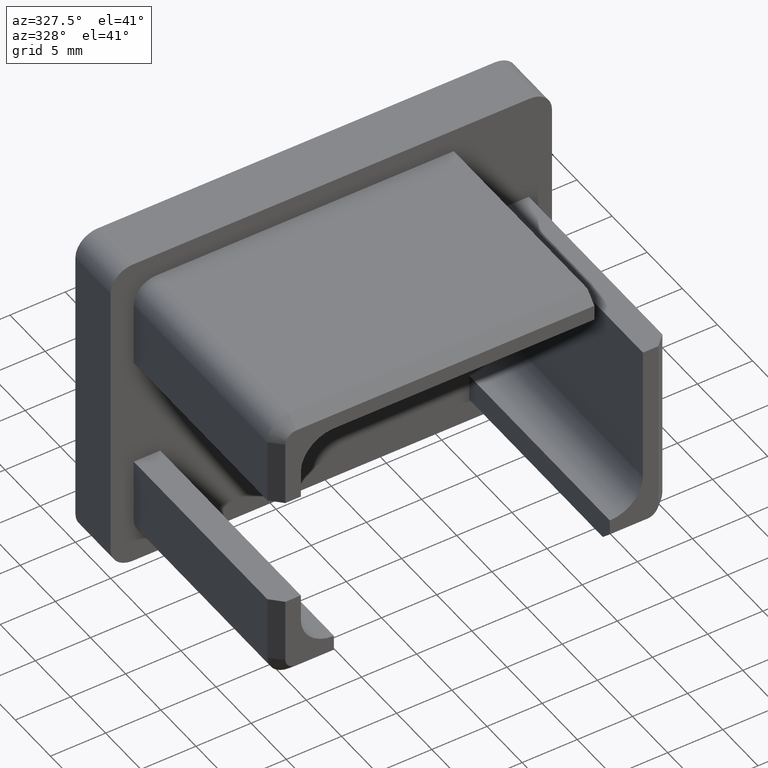
[diagram: clean part render]
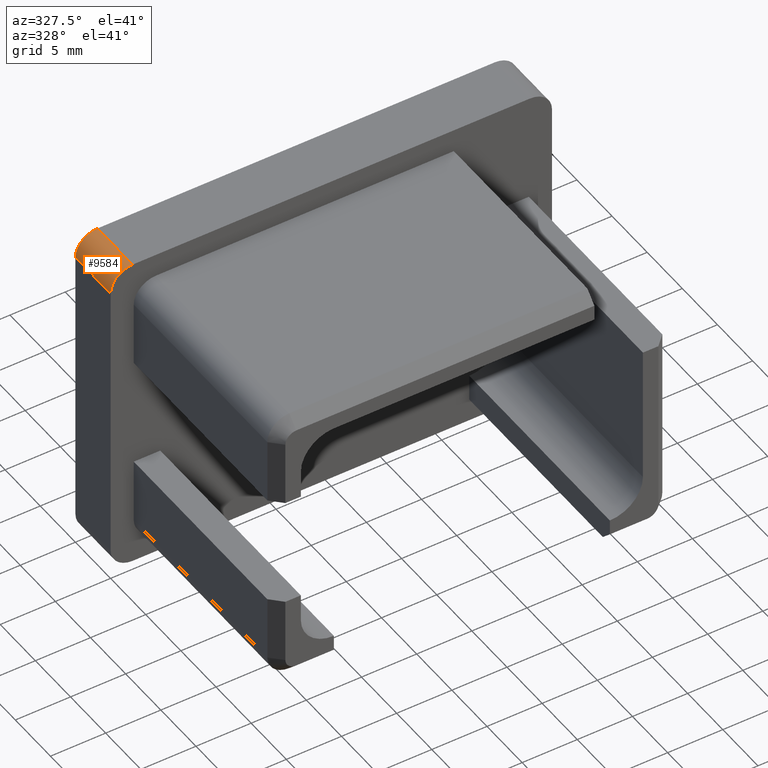
[diagram: same view with one face highlighted and labeled with its STEP entity id]
A machine part, auxiliary view. The second image highlights one B-rep face of the part: STEP entity #9584.
In plain terms, the highlighted cylindrical surface (edge-blend (fillet) strip) has radius 2 mm, axis along (0, -1, 0).
Its self-contained STEP definition (entity closure, byte-faithful):
#16 = DIRECTION ( 'NONE',  ( -0.0000000000000000000, 1.000000000000000000, -0.0000000000000000000 ) ) ;
#1311 = ORIENTED_EDGE ( 'NONE', *, *, #10946, .F. ) ;
#1349 = CARTESIAN_POINT ( 'NONE',  ( -18.00000000000000400, 5.000000000000000000, 14.99999999999999600 ) ) ;
#1376 = ORIENTED_EDGE ( 'NONE', *, *, #13021, .F. ) ;
#1499 = AXIS2_PLACEMENT_3D ( 'NONE', #1637, #14715, #11234 ) ;
#1637 = CARTESIAN_POINT ( 'NONE',  ( -18.00000000000000400, 0.0000000000000000000, 12.99999999999999600 ) ) ;
#1947 = CARTESIAN_POINT ( 'NONE',  ( -20.00000000000000400, 0.0000000000000000000, 12.99999999999999500 ) ) ;
#1958 = VERTEX_POINT ( 'NONE', #1947 ) ;
#1966 = FACE_OUTER_BOUND ( 'NONE', #5582, .T. ) ;
#2470 = DIRECTION ( 'NONE',  ( 0.0000000000000000000, -1.000000000000000000, 0.0000000000000000000 ) ) ;
#2945 = CIRCLE ( 'NONE', #14023, 2.000000000000000000 ) ;
#3224 = DIRECTION ( 'NONE',  ( 0.0000000000000000000, 1.000000000000000000, 0.0000000000000000000 ) ) ;
#4141 = EDGE_CURVE ( 'NONE', #12533, #1958, #13481, .T. ) ;
#4336 = DIRECTION ( 'NONE',  ( 0.0000000000000000000, 0.0000000000000000000, 1.000000000000000000 ) ) ;
#4421 = AXIS2_PLACEMENT_3D ( 'NONE', #4516, #12795, #15257 ) ;
#4516 = CARTESIAN_POINT ( 'NONE',  ( -18.00000000000000400, 5.000000000000000000, 12.99999999999999600 ) ) ;
#4905 = CARTESIAN_POINT ( 'NONE',  ( -18.00000000000000400, 0.0000000000000000000, 14.99999999999999600 ) ) ;
#5148 = VECTOR ( 'NONE', #2470, 1000.000000000000000 ) ;
#5582 = EDGE_LOOP ( 'NONE', ( #8914, #1376, #11558, #1311 ) ) ;
#7127 = CARTESIAN_POINT ( 'NONE',  ( -20.00000000000000400, 5.000000000000000000, 12.99999999999999500 ) ) ;
#7257 = VERTEX_POINT ( 'NONE', #7127 ) ;
#7976 = VERTEX_POINT ( 'NONE', #13454 ) ;
#8914 = ORIENTED_EDGE ( 'NONE', *, *, #14579, .F. ) ;
#9584 = ADVANCED_FACE ( 'NONE', ( #1966 ), #13956, .T. ) ;
#10946 = EDGE_CURVE ( 'NONE', #7976, #12533, #11536, .T. ) ;
#11234 = DIRECTION ( 'NONE',  ( 0.0000000000000000000, 0.0000000000000000000, 1.000000000000000000 ) ) ;
#11536 = LINE ( 'NONE', #1349, #5148 ) ;
#11558 = ORIENTED_EDGE ( 'NONE', *, *, #4141, .F. ) ;
#12533 = VERTEX_POINT ( 'NONE', #4905 ) ;
#12795 = DIRECTION ( 'NONE',  ( 0.0000000000000000000, -1.000000000000000000, 0.0000000000000000000 ) ) ;
#12815 = CARTESIAN_POINT ( 'NONE',  ( -18.00000000000000400, 5.000000000000000000, 12.99999999999999600 ) ) ;
#12894 = VECTOR ( 'NONE', #16, 1000.000000000000000 ) ;
#13021 = EDGE_CURVE ( 'NONE', #1958, #7257, #15336, .T. ) ;
#13454 = CARTESIAN_POINT ( 'NONE',  ( -18.00000000000000400, 5.000000000000000000, 14.99999999999999600 ) ) ;
#13481 = CIRCLE ( 'NONE', #1499, 2.000000000000000000 ) ;
#13956 = CYLINDRICAL_SURFACE ( 'NONE', #4421, 2.000000000000000000 ) ;
#14023 = AXIS2_PLACEMENT_3D ( 'NONE', #12815, #3224, #4336 ) ;
#14357 = CARTESIAN_POINT ( 'NONE',  ( -20.00000000000000400, 5.000000000000000000, 12.99999999999999500 ) ) ;
#14579 = EDGE_CURVE ( 'NONE', #7257, #7976, #2945, .T. ) ;
#14715 = DIRECTION ( 'NONE',  ( -0.0000000000000000000, -1.000000000000000000, -0.0000000000000000000 ) ) ;
#15257 = DIRECTION ( 'NONE',  ( 0.0000000000000000000, 0.0000000000000000000, -1.000000000000000000 ) ) ;
#15336 = LINE ( 'NONE', #14357, #12894 ) ;